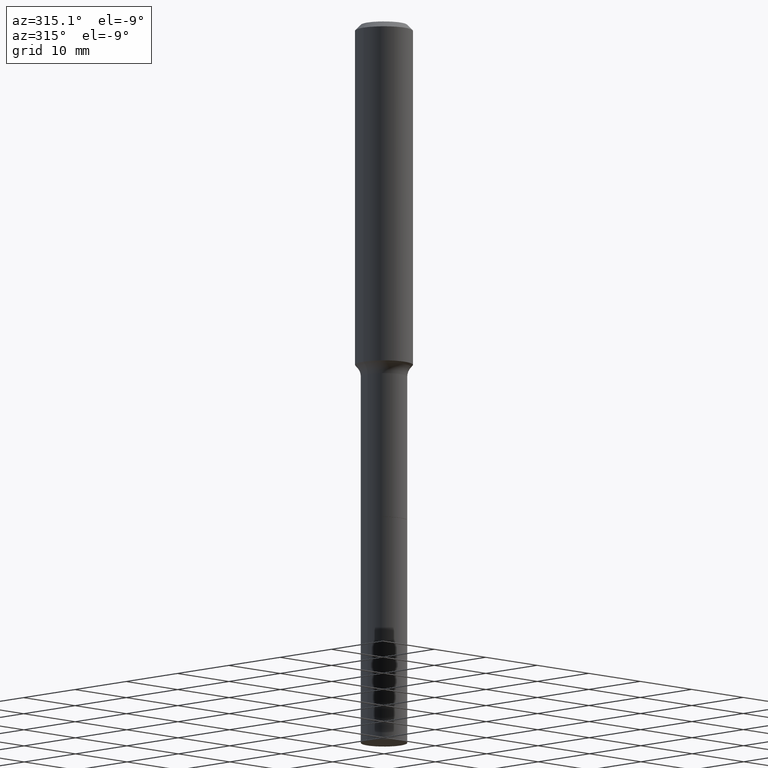
[diagram: clean part render]
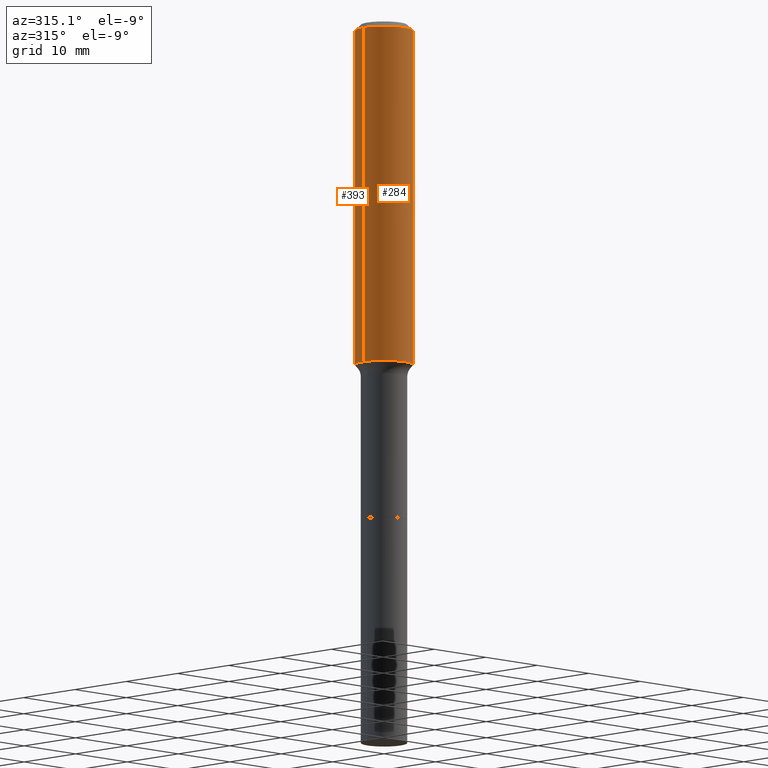
[diagram: same view with one multi-face feature highlighted, each face labeled with its STEP entity id]
A machine part, auxiliary view. The highlighted faces form ONE feature: a constant-radius fillet chain: 2 tangent blend faces with common blend radius 4.0005 mm. The faces share edges in the B-rep.
Their STEP definitions:
[1] entity #393 (Cylinder):
#14 = VERTEX_POINT ( 'NONE', #347 ) ;
#47 = CARTESIAN_POINT ( 'NONE',  ( 7.703226739483235729E-31, -1.099816621735598771E-16, -0.03150000000000022921 ) ) ;
#56 = CARTESIAN_POINT ( 'NONE',  ( 0.000000000000000000, 0.000000000000000000, 0.000000000000000000 ) ) ;
#58 = ORIENTED_EDGE ( 'NONE', *, *, #69, .F. ) ;
#69 = EDGE_CURVE ( 'NONE', #251, #484, #190, .T. ) ;
#94 = ORIENTED_EDGE ( 'NONE', *, *, #177, .F. ) ;
#104 = CARTESIAN_POINT ( 'NONE',  ( -0.1575000000000000011, -2.189436083991743713E-15, -0.03150000000000022921 ) ) ;
#122 = DIRECTION ( 'NONE',  ( -2.445468806185136597E-29, 3.491481338843145583E-15, 1.000000000000000000 ) ) ;
#133 = AXIS2_PLACEMENT_3D ( 'NONE', #56, #376, #161 ) ;
#139 = DIRECTION ( 'NONE',  ( -2.445468806185136877E-29, 3.491481338843145188E-15, 1.000000000000000000 ) ) ;
#147 = CARTESIAN_POINT ( 'NONE',  ( -0.1575000000000000844, 1.119104808822158392E-15, -7.747322767151481189E-30 ) ) ;
#158 = CARTESIAN_POINT ( 'NONE',  ( 0.1575000000000000011, -1.209798283909146938E-15, -0.03150000000000022921 ) ) ;
#161 = DIRECTION ( 'NONE',  ( 1.000000000000000000, -6.982962677686267499E-15, 4.876176775795936353E-29 ) ) ;
#166 = VECTOR ( 'NONE', #429, 39.37007874015748143 ) ;
#173 = CIRCLE ( 'NONE', #416, 0.1575000000000002232 ) ;
#177 = EDGE_CURVE ( 'NONE', #340, #251, #412, .T. ) ;
#188 = CYLINDRICAL_SURFACE ( 'NONE', #133, 0.1575000000000000844 ) ;
#190 = CIRCLE ( 'NONE', #488, 0.1575000000000000011 ) ;
#193 = EDGE_LOOP ( 'NONE', ( #304, #373, #58, #94 ) ) ;
#216 = VECTOR ( 'NONE', #139, 39.37007874015748143 ) ;
#251 = VERTEX_POINT ( 'NONE', #158 ) ;
#265 = LINE ( 'NONE', #147, #166 ) ;
#280 = DIRECTION ( 'NONE',  ( 1.000000000000000000, -6.982962677686271444E-15, 0.000000000000000000 ) ) ;
#292 = EDGE_CURVE ( 'NONE', #340, #14, #173, .T. ) ;
#304 = ORIENTED_EDGE ( 'NONE', *, *, #292, .T. ) ;
#340 = VERTEX_POINT ( 'NONE', #491 ) ;
#347 = CARTESIAN_POINT ( 'NONE',  ( -0.1575000000000002232, -5.387995314632085572E-15, -1.863707547585027102 ) ) ;
#367 = DIRECTION ( 'NONE',  ( -2.445468806185136597E-29, 3.491481338843145583E-15, 1.000000000000000000 ) ) ;
#373 = ORIENTED_EDGE ( 'NONE', *, *, #418, .T. ) ;
#376 = DIRECTION ( 'NONE',  ( -2.445468806185136597E-29, 3.491481338843145583E-15, 1.000000000000000000 ) ) ;
#384 = FACE_OUTER_BOUND ( 'NONE', #193, .T. ) ;
#391 = CARTESIAN_POINT ( 'NONE',  ( 4.557638671470984691E-29, -6.507100123454245542E-15, -1.863707547585027102 ) ) ;
#393 = ADVANCED_FACE ( 'NONE', ( #384 ), #188, .T. ) ;
#396 = DIRECTION ( 'NONE',  ( 1.000000000000000000, -6.982962677686265922E-15, 0.000000000000000000 ) ) ;
#412 = LINE ( 'NONE', #494, #216 ) ;
#416 = AXIS2_PLACEMENT_3D ( 'NONE', #391, #122, #280 ) ;
#418 = EDGE_CURVE ( 'NONE', #14, #484, #265, .T. ) ;
#429 = DIRECTION ( 'NONE',  ( -2.445468806185136877E-29, 3.491481338843145188E-15, 1.000000000000000000 ) ) ;
#484 = VERTEX_POINT ( 'NONE', #104 ) ;
#488 = AXIS2_PLACEMENT_3D ( 'NONE', #47, #367, #396 ) ;
#491 = CARTESIAN_POINT ( 'NONE',  ( 0.1575000000000002232, -7.606916745189833811E-15, -1.863707547585027102 ) ) ;
#494 = CARTESIAN_POINT ( 'NONE',  ( 0.1575000000000000844, -1.099816621735587677E-15, 7.679978421878603638E-30 ) ) ;
[2] entity #284 (Cylinder):
#14 = VERTEX_POINT ( 'NONE', #347 ) ;
#67 = DIRECTION ( 'NONE',  ( 1.000000000000000000, -6.982962677686271444E-15, 0.000000000000000000 ) ) ;
#103 = EDGE_LOOP ( 'NONE', ( #467, #111, #336, #508 ) ) ;
#104 = CARTESIAN_POINT ( 'NONE',  ( -0.1575000000000000011, -2.189436083991743713E-15, -0.03150000000000022921 ) ) ;
#111 = ORIENTED_EDGE ( 'NONE', *, *, #409, .T. ) ;
#139 = DIRECTION ( 'NONE',  ( -2.445468806185136877E-29, 3.491481338843145188E-15, 1.000000000000000000 ) ) ;
#147 = CARTESIAN_POINT ( 'NONE',  ( -0.1575000000000000844, 1.119104808822158392E-15, -7.747322767151481189E-30 ) ) ;
#154 = CYLINDRICAL_SURFACE ( 'NONE', #451, 0.1575000000000000844 ) ;
#158 = CARTESIAN_POINT ( 'NONE',  ( 0.1575000000000000011, -1.209798283909146938E-15, -0.03150000000000022921 ) ) ;
#166 = VECTOR ( 'NONE', #429, 39.37007874015748143 ) ;
#177 = EDGE_CURVE ( 'NONE', #340, #251, #412, .T. ) ;
#203 = CIRCLE ( 'NONE', #459, 0.1575000000000000011 ) ;
#206 = CIRCLE ( 'NONE', #489, 0.1575000000000002232 ) ;
#216 = VECTOR ( 'NONE', #139, 39.37007874015748143 ) ;
#230 = CARTESIAN_POINT ( 'NONE',  ( 0.000000000000000000, 0.000000000000000000, 0.000000000000000000 ) ) ;
#251 = VERTEX_POINT ( 'NONE', #158 ) ;
#261 = DIRECTION ( 'NONE',  ( -2.445468806185136597E-29, 3.491481338843145583E-15, 1.000000000000000000 ) ) ;
#264 = DIRECTION ( 'NONE',  ( 1.000000000000000000, -6.982962677686265922E-15, 0.000000000000000000 ) ) ;
#265 = LINE ( 'NONE', #147, #166 ) ;
#271 = CARTESIAN_POINT ( 'NONE',  ( 4.557638671470984691E-29, -6.507100123454245542E-15, -1.863707547585027102 ) ) ;
#284 = ADVANCED_FACE ( 'NONE', ( #472 ), #154, .T. ) ;
#312 = DIRECTION ( 'NONE',  ( -2.445468806185136597E-29, 3.491481338843145583E-15, 1.000000000000000000 ) ) ;
#336 = ORIENTED_EDGE ( 'NONE', *, *, #177, .T. ) ;
#340 = VERTEX_POINT ( 'NONE', #491 ) ;
#347 = CARTESIAN_POINT ( 'NONE',  ( -0.1575000000000002232, -5.387995314632085572E-15, -1.863707547585027102 ) ) ;
#382 = EDGE_CURVE ( 'NONE', #484, #251, #203, .T. ) ;
#409 = EDGE_CURVE ( 'NONE', #14, #340, #206, .T. ) ;
#412 = LINE ( 'NONE', #494, #216 ) ;
#418 = EDGE_CURVE ( 'NONE', #14, #484, #265, .T. ) ;
#429 = DIRECTION ( 'NONE',  ( -2.445468806185136877E-29, 3.491481338843145188E-15, 1.000000000000000000 ) ) ;
#451 = AXIS2_PLACEMENT_3D ( 'NONE', #230, #312, #476 ) ;
#459 = AXIS2_PLACEMENT_3D ( 'NONE', #462, #507, #264 ) ;
#462 = CARTESIAN_POINT ( 'NONE',  ( 7.703226739483235729E-31, -1.099816621735598771E-16, -0.03150000000000022921 ) ) ;
#467 = ORIENTED_EDGE ( 'NONE', *, *, #418, .F. ) ;
#472 = FACE_OUTER_BOUND ( 'NONE', #103, .T. ) ;
#476 = DIRECTION ( 'NONE',  ( 1.000000000000000000, -6.982962677686267499E-15, 4.876176775795936353E-29 ) ) ;
#484 = VERTEX_POINT ( 'NONE', #104 ) ;
#489 = AXIS2_PLACEMENT_3D ( 'NONE', #271, #261, #67 ) ;
#491 = CARTESIAN_POINT ( 'NONE',  ( 0.1575000000000002232, -7.606916745189833811E-15, -1.863707547585027102 ) ) ;
#494 = CARTESIAN_POINT ( 'NONE',  ( 0.1575000000000000844, -1.099816621735587677E-15, 7.679978421878603638E-30 ) ) ;
#507 = DIRECTION ( 'NONE',  ( -2.445468806185136597E-29, 3.491481338843145583E-15, 1.000000000000000000 ) ) ;
#508 = ORIENTED_EDGE ( 'NONE', *, *, #382, .F. ) ;